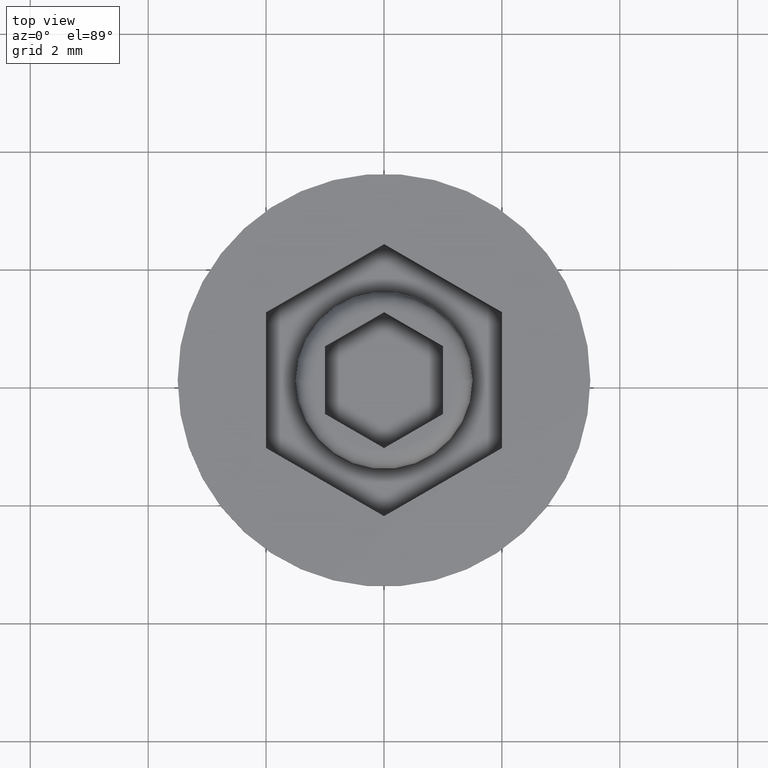
[diagram: clean part render]
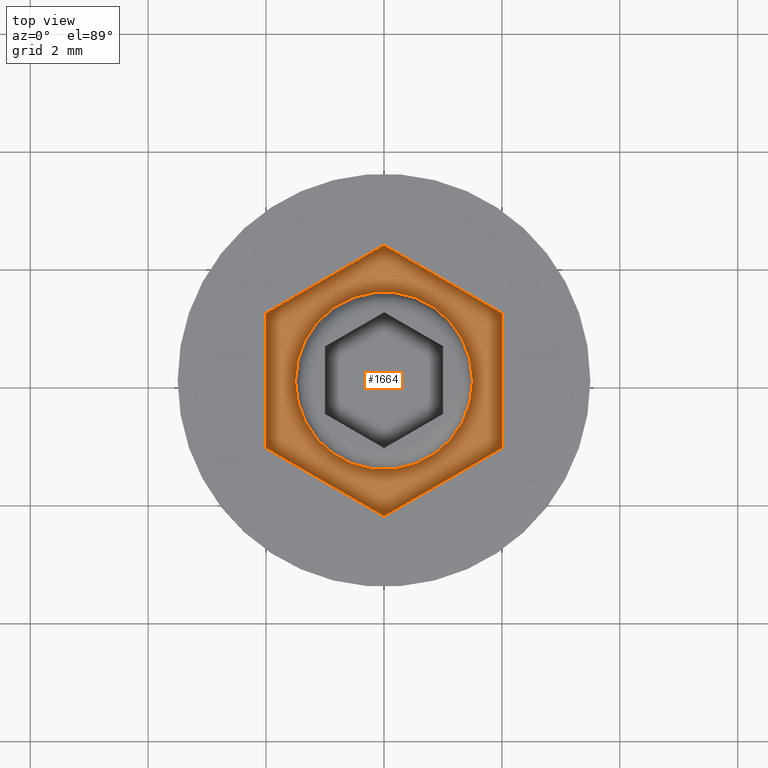
[diagram: same view with one face highlighted and labeled with its STEP entity id]
A machine part, top view. The second image highlights one B-rep face of the part: STEP entity #1664.
In plain terms, the highlighted planar face has unit normal (0, 0, 1).
Its self-contained STEP definition (entity closure, byte-faithful):
#21 = DIRECTION ( 'NONE',  ( -0.8660254037844387076, -0.4999999999999999445, 0.000000000000000000 ) ) ;
#54 = DIRECTION ( 'NONE',  ( 0.8660254037844384856, 0.5000000000000001110, 0.000000000000000000 ) ) ;
#65 = LINE ( 'NONE', #1311, #639 ) ;
#133 = CARTESIAN_POINT ( 'NONE',  ( -2.000000000000000000, -1.154700538379252128, -1.000000000000000000 ) ) ;
#135 = EDGE_CURVE ( 'NONE', #1648, #796, #1176, .T. ) ;
#149 = ORIENTED_EDGE ( 'NONE', *, *, #1287, .T. ) ;
#197 = CARTESIAN_POINT ( 'NONE',  ( 0.000000000000000000, 0.000000000000000000, -1.000000000000000000 ) ) ;
#201 = VERTEX_POINT ( 'NONE', #228 ) ;
#214 = VERTEX_POINT ( 'NONE', #1638 ) ;
#227 = EDGE_CURVE ( 'NONE', #201, #1141, #1493, .T. ) ;
#228 = CARTESIAN_POINT ( 'NONE',  ( 2.000000000000000000, -1.154700538379251684, -1.000000000000000000 ) ) ;
#231 = VECTOR ( 'NONE', #394, 1000.000000000000000 ) ;
#248 = CARTESIAN_POINT ( 'NONE',  ( 2.000000000000000000, 1.154700538379251240, -1.000000000000000000 ) ) ;
#283 = CARTESIAN_POINT ( 'NONE',  ( 0.000000000000000000, 0.000000000000000000, -1.000000000000000000 ) ) ;
#311 = DIRECTION ( 'NONE',  ( 1.000000000000000000, 0.000000000000000000, -0.000000000000000000 ) ) ;
#344 = CARTESIAN_POINT ( 'NONE',  ( 1.500000000000000222, 1.836970198721030181E-16, -1.000000000000000000 ) ) ;
#394 = DIRECTION ( 'NONE',  ( 0.000000000000000000, 1.000000000000000000, 0.000000000000000000 ) ) ;
#433 = LINE ( 'NONE', #1710, #469 ) ;
#453 = FACE_OUTER_BOUND ( 'NONE', #1043, .T. ) ;
#469 = VECTOR ( 'NONE', #21, 1000.000000000000000 ) ;
#555 = VECTOR ( 'NONE', #1436, 1000.000000000000000 ) ;
#596 = ORIENTED_EDGE ( 'NONE', *, *, #1184, .T. ) ;
#639 = VECTOR ( 'NONE', #54, 1000.000000000000227 ) ;
#663 = ORIENTED_EDGE ( 'NONE', *, *, #1100, .T. ) ;
#678 = DIRECTION ( 'NONE',  ( 1.000000000000000000, 0.000000000000000000, 0.000000000000000000 ) ) ;
#735 = DIRECTION ( 'NONE',  ( 0.000000000000000000, 0.000000000000000000, 1.000000000000000000 ) ) ;
#787 = ORIENTED_EDGE ( 'NONE', *, *, #1526, .F. ) ;
#789 = AXIS2_PLACEMENT_3D ( 'NONE', #1786, #1649, #1362 ) ;
#796 = VERTEX_POINT ( 'NONE', #133 ) ;
#824 = EDGE_LOOP ( 'NONE', ( #787, #1081 ) ) ;
#890 = CARTESIAN_POINT ( 'NONE',  ( -2.000000000000000000, 1.154700538379251018, -1.000000000000000000 ) ) ;
#936 = VECTOR ( 'NONE', #1070, 1000.000000000000114 ) ;
#951 = EDGE_CURVE ( 'NONE', #1141, #214, #1124, .T. ) ;
#989 = ORIENTED_EDGE ( 'NONE', *, *, #951, .T. ) ;
#995 = DIRECTION ( 'NONE',  ( 0.000000000000000000, 0.000000000000000000, 1.000000000000000000 ) ) ;
#1008 = CARTESIAN_POINT ( 'NONE',  ( 2.000000000000000000, 1.154700538379251240, -1.000000000000000000 ) ) ;
#1015 = DIRECTION ( 'NONE',  ( 0.000000000000000000, -1.000000000000000000, 0.000000000000000000 ) ) ;
#1022 = CARTESIAN_POINT ( 'NONE',  ( 3.997386383800531884E-16, -2.309401076758503368, -1.000000000000000000 ) ) ;
#1043 = EDGE_LOOP ( 'NONE', ( #989, #596, #1641, #663, #149, #1449 ) ) ;
#1070 = DIRECTION ( 'NONE',  ( 0.8660254037844387076, -0.4999999999999997780, 0.000000000000000000 ) ) ;
#1079 = LINE ( 'NONE', #1093, #936 ) ;
#1081 = ORIENTED_EDGE ( 'NONE', *, *, #1793, .F. ) ;
#1093 = CARTESIAN_POINT ( 'NONE',  ( -2.000000000000000000, -1.154700538379252128, -1.000000000000000000 ) ) ;
#1100 = EDGE_CURVE ( 'NONE', #796, #1253, #1079, .T. ) ;
#1119 = CARTESIAN_POINT ( 'NONE',  ( -1.500000000000000222, 0.000000000000000000, -1.000000000000000000 ) ) ;
#1124 = LINE ( 'NONE', #1008, #555 ) ;
#1141 = VERTEX_POINT ( 'NONE', #248 ) ;
#1176 = LINE ( 'NONE', #1748, #1501 ) ;
#1184 = EDGE_CURVE ( 'NONE', #214, #1648, #433, .T. ) ;
#1239 = AXIS2_PLACEMENT_3D ( 'NONE', #283, #995, #678 ) ;
#1253 = VERTEX_POINT ( 'NONE', #1022 ) ;
#1287 = EDGE_CURVE ( 'NONE', #1253, #201, #65, .T. ) ;
#1311 = CARTESIAN_POINT ( 'NONE',  ( 3.997386383800531884E-16, -2.309401076758503368, -1.000000000000000000 ) ) ;
#1362 = DIRECTION ( 'NONE',  ( 1.000000000000000000, 0.000000000000000000, 0.000000000000000000 ) ) ;
#1381 = AXIS2_PLACEMENT_3D ( 'NONE', #197, #735, #311 ) ;
#1436 = DIRECTION ( 'NONE',  ( -0.8660254037844387076, 0.4999999999999998890, 0.000000000000000000 ) ) ;
#1449 = ORIENTED_EDGE ( 'NONE', *, *, #227, .T. ) ;
#1493 = LINE ( 'NONE', #1808, #231 ) ;
#1501 = VECTOR ( 'NONE', #1015, 1000.000000000000000 ) ;
#1526 = EDGE_CURVE ( 'NONE', #1537, #1617, #1659, .T. ) ;
#1537 = VERTEX_POINT ( 'NONE', #1119 ) ;
#1591 = PLANE ( 'NONE',  #1381 ) ;
#1601 = FACE_BOUND ( 'NONE', #824, .T. ) ;
#1605 = CIRCLE ( 'NONE', #789, 1.500000000000000222 ) ;
#1617 = VERTEX_POINT ( 'NONE', #344 ) ;
#1638 = CARTESIAN_POINT ( 'NONE',  ( 0.000000000000000000, 2.309401076758502480, -1.000000000000000000 ) ) ;
#1641 = ORIENTED_EDGE ( 'NONE', *, *, #135, .T. ) ;
#1648 = VERTEX_POINT ( 'NONE', #890 ) ;
#1649 = DIRECTION ( 'NONE',  ( 0.000000000000000000, 0.000000000000000000, 1.000000000000000000 ) ) ;
#1659 = CIRCLE ( 'NONE', #1239, 1.500000000000000222 ) ;
#1664 = ADVANCED_FACE ( 'NONE', ( #1601, #453 ), #1591, .T. ) ;
#1710 = CARTESIAN_POINT ( 'NONE',  ( 0.000000000000000000, 2.309401076758502480, -1.000000000000000000 ) ) ;
#1748 = CARTESIAN_POINT ( 'NONE',  ( -2.000000000000000000, 1.154700538379251018, -1.000000000000000000 ) ) ;
#1786 = CARTESIAN_POINT ( 'NONE',  ( 0.000000000000000000, 0.000000000000000000, -1.000000000000000000 ) ) ;
#1793 = EDGE_CURVE ( 'NONE', #1617, #1537, #1605, .T. ) ;
#1808 = CARTESIAN_POINT ( 'NONE',  ( 2.000000000000000000, -1.154700538379251684, -1.000000000000000000 ) ) ;